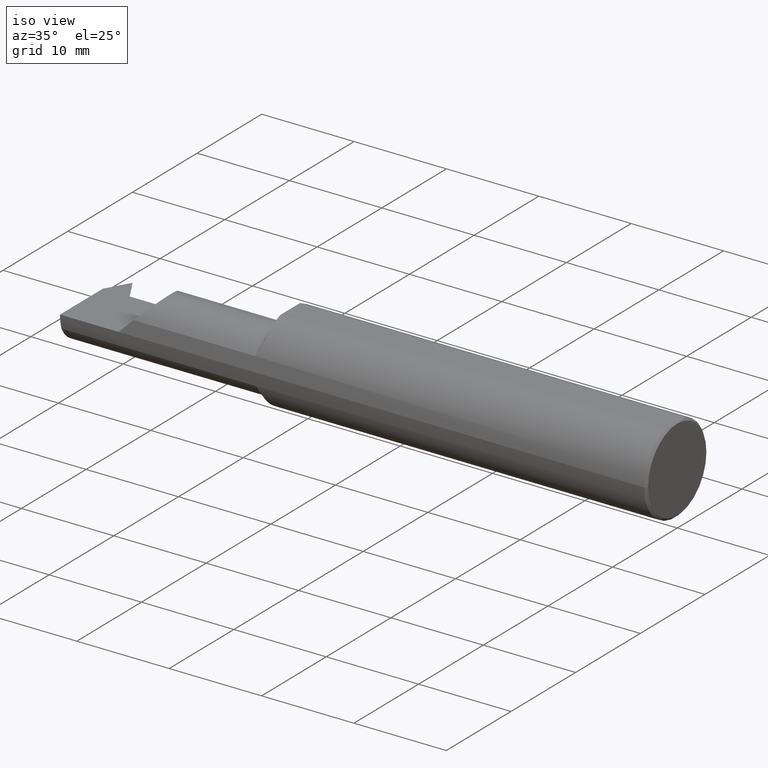
[diagram: clean part render]
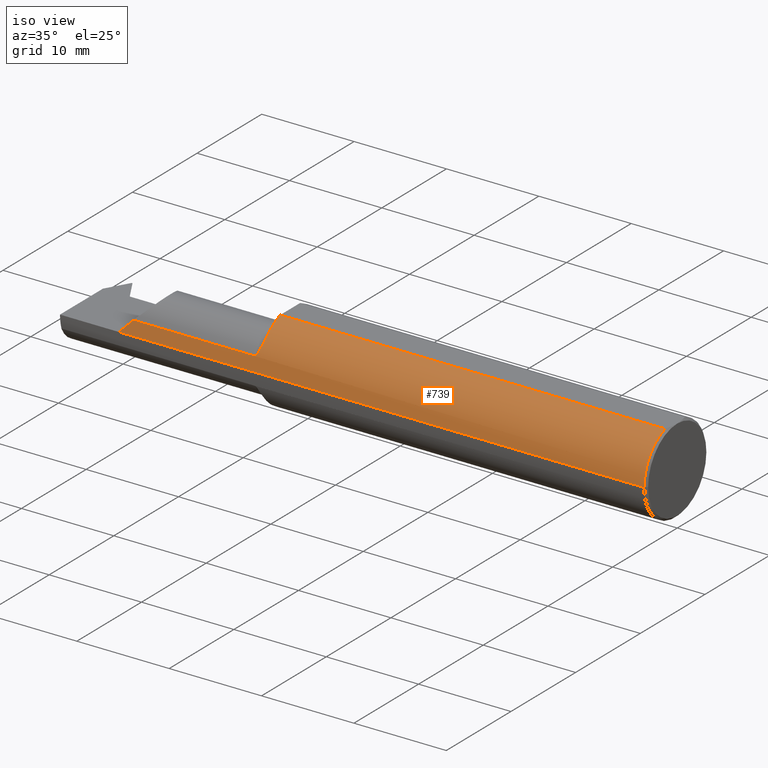
[diagram: same view with one face highlighted and labeled with its STEP entity id]
A machine part, iso view. The second image highlights one B-rep face of the part: STEP entity #739.
In plain terms, the highlighted cylindrical surface (partial cylindrical patch) has radius 4.7587 mm, axis along (1, 0, -0).
Its self-contained STEP definition (entity closure, byte-faithful):
#23 = DIRECTION ( 'NONE',  ( 1.000000000000000000, 1.224646799147352961E-16, -0.000000000000000000 ) ) ;
#28 = CARTESIAN_POINT ( 'NONE',  ( -2.250000000000000000, -0.1873499999999998222, 0.000000000000000000 ) ) ;
#33 = VECTOR ( 'NONE', #23, 39.37007874015748143 ) ;
#48 = AXIS2_PLACEMENT_3D ( 'NONE', #399, #533, #186 ) ;
#86 = VERTEX_POINT ( 'NONE', #248 ) ;
#89 = LINE ( 'NONE', #353, #33 ) ;
#115 = CIRCLE ( 'NONE', #169, 0.1873499999999999055 ) ;
#140 = CARTESIAN_POINT ( 'NONE',  ( -1.652207105173744139, -0.1438831799117014365, 0.1203810775392139126 ) ) ;
#156 = CARTESIAN_POINT ( 'NONE',  ( -1.673764212023046483, -0.1783697086546788269, 0.05730854678357311105 ) ) ;
#169 = AXIS2_PLACEMENT_3D ( 'NONE', #407, #477, #467 ) ;
#186 = DIRECTION ( 'NONE',  ( 0.000000000000000000, 1.000000000000000000, 0.000000000000000000 ) ) ;
#188 = CARTESIAN_POINT ( 'NONE',  ( -1.650000000000000133, -0.1160303770344974783, 0.1470951192431561860 ) ) ;
#200 = DIRECTION ( 'NONE',  ( -1.253099476677463101E-16, 1.000000000000000000, 0.000000000000000000 ) ) ;
#205 = CARTESIAN_POINT ( 'NONE',  ( -1.650000000000000133, -0.1160303770344974783, 0.1470951192431561860 ) ) ;
#219 = VERTEX_POINT ( 'NONE', #188 ) ;
#234 = ORIENTED_EDGE ( 'NONE', *, *, #452, .F. ) ;
#248 = CARTESIAN_POINT ( 'NONE',  ( -2.250000000000000000, -0.1873499999999998222, 0.000000000000000000 ) ) ;
#254 = ORIENTED_EDGE ( 'NONE', *, *, #867, .T. ) ;
#263 = CYLINDRICAL_SURFACE ( 'NONE', #48, 0.1873499999999999055 ) ;
#288 = ORIENTED_EDGE ( 'NONE', *, *, #845, .F. ) ;
#290 = VERTEX_POINT ( 'NONE', #422 ) ;
#308 = AXIS2_PLACEMENT_3D ( 'NONE', #461, #319, #200 ) ;
#318 = EDGE_CURVE ( 'NONE', #599, #424, #807, .T. ) ;
#319 = DIRECTION ( 'NONE',  ( -1.000000000000000000, -1.224646799147319927E-16, 0.000000000000000000 ) ) ;
#340 = DIRECTION ( 'NONE',  ( -1.000000000000000000, 9.108622265535208572E-17, -0.000000000000000000 ) ) ;
#349 = CARTESIAN_POINT ( 'NONE',  ( -1.650000000000000133, -0.06039039658753631717, 0.1773500000000000909 ) ) ;
#353 = CARTESIAN_POINT ( 'NONE',  ( -2.500000000000000000, -0.1873499999999998500, 2.294375778202565098E-17 ) ) ;
#360 = CARTESIAN_POINT ( 'NONE',  ( -1.664343418362526306, -0.1730952584121027704, 0.07182162584506067426 ) ) ;
#381 = CIRCLE ( 'NONE', #308, 0.1873499999999999055 ) ;
#399 = CARTESIAN_POINT ( 'NONE',  ( -2.500000000000000000, 6.123233995736767268E-17, 0.000000000000000000 ) ) ;
#406 = ORIENTED_EDGE ( 'NONE', *, *, #318, .T. ) ;
#407 = CARTESIAN_POINT ( 'NONE',  ( -1.650000000000000133, 1.653273178848926620E-16, 0.000000000000000000 ) ) ;
#422 = CARTESIAN_POINT ( 'NONE',  ( -0.009999999999999073866, -0.06039039658753610901, 0.1773500000000000909 ) ) ;
#423 = CARTESIAN_POINT ( 'NONE',  ( -2.211249739839921791, -0.1843323154515824902, 0.03875026016007789009 ) ) ;
#424 = VERTEX_POINT ( 'NONE', #559 ) ;
#435 = VERTEX_POINT ( 'NONE', #349 ) ;
#452 = EDGE_CURVE ( 'NONE', #86, #424, #487, .T. ) ;
#455 = ORIENTED_EDGE ( 'NONE', *, *, #519, .T. ) ;
#461 = CARTESIAN_POINT ( 'NONE',  ( -0.009999999999999073866, 3.661693929450587103E-16, 0.000000000000000000 ) ) ;
#467 = DIRECTION ( 'NONE',  ( 0.000000000000000000, -1.000000000000000000, -3.552713678800500929E-15 ) ) ;
#477 = DIRECTION ( 'NONE',  ( 1.000000000000000000, -9.108622265535208572E-17, 0.000000000000000000 ) ) ;
#483 = CARTESIAN_POINT ( 'NONE',  ( -1.649999999999978817, -0.1236042208122529046, 0.1411207813207419337 ) ) ;
#485 = EDGE_LOOP ( 'NONE', ( #234, #455, #696, #288, #774, #254, #406 ) ) ;
#487 =( BOUNDED_CURVE ( )  B_SPLINE_CURVE ( 3, ( #28, #492, #423, #688 ),
 .UNSPECIFIED., .F., .T. ) 
 B_SPLINE_CURVE_WITH_KNOTS ( ( 4, 4 ),
 ( 4.712388980384689674, 5.023262387692870590 ),
 .UNSPECIFIED. ) 
 CURVE ( )  GEOMETRIC_REPRESENTATION_ITEM ( )  RATIONAL_B_SPLINE_CURVE ( ( 1.000000000000000000, 0.9919626788073501178, 0.9919626788073501178, 1.000000000000000000 ) ) 
 REPRESENTATION_ITEM ( '' )  );
#492 = CARTESIAN_POINT ( 'NONE',  ( -2.230507368514858868, -0.1873499999999997390, 0.01949263148514096197 ) ) ;
#505 = CARTESIAN_POINT ( 'NONE',  ( -1.658844572613941803, -0.1652240583778480376, 0.08882027308812322219 ) ) ;
#518 = VERTEX_POINT ( 'NONE', #773 ) ;
#519 = EDGE_CURVE ( 'NONE', #86, #518, #89, .T. ) ;
#530 = CARTESIAN_POINT ( 'NONE',  ( -1.656810654710997310, -0.1605151270935934182, 0.09708342838367799155 ) ) ;
#533 = DIRECTION ( 'NONE',  ( 1.000000000000000000, 1.224646799147352961E-16, -0.000000000000000000 ) ) ;
#539 = VECTOR ( 'NONE', #674, 39.37007874015748143 ) ;
#544 = CARTESIAN_POINT ( 'NONE',  ( -2.500000000000000000, -0.06039039658753642126, 0.1773500000000000909 ) ) ;
#553 = CARTESIAN_POINT ( 'NONE',  ( -1.670882408083194548, -0.1776276410483738910, 0.05957475000073373522 ) ) ;
#559 = CARTESIAN_POINT ( 'NONE',  ( -2.192691453216396358, -0.1783697086546690291, 0.05730854678360299687 ) ) ;
#561 = CARTESIAN_POINT ( 'NONE',  ( -1.668195961774019409, -0.1762973784583061199, 0.06343092843766146016 ) ) ;
#573 = B_SPLINE_CURVE_WITH_KNOTS ( 'NONE', 3,
 ( #205, #483, #751, #140, #597, #530, #505, #775, #360, #691, #561, #822, #553, #757, #156, #683 ),
 .UNSPECIFIED., .F., .F.,
 ( 4, 2, 2, 2, 2, 2, 2, 4 ),
 ( 0.0004765446698261292650, 0.001211022660611348577, 0.001945500651396567726, 0.002679978642181785574, 0.003047217637574393522, 0.003230837135270698580, 0.003322646884118851326, 0.003414456632967004072 ),
 .UNSPECIFIED. ) ;
#582 = VECTOR ( 'NONE', #340, 39.37007874015748143 ) ;
#597 = CARTESIAN_POINT ( 'NONE',  ( -1.653482061302840700, -0.1498697720273031719, 0.1128244190106263700 ) ) ;
#599 = VERTEX_POINT ( 'NONE', #787 ) ;
#674 = DIRECTION ( 'NONE',  ( 1.000000000000000000, 1.224646799147352961E-16, -0.000000000000000000 ) ) ;
#683 = CARTESIAN_POINT ( 'NONE',  ( -1.675000000000000044, -0.1783697086546690291, 0.05730854678360375321 ) ) ;
#688 = CARTESIAN_POINT ( 'NONE',  ( -2.192691453216396358, -0.1783697086546690291, 0.05730854678360299687 ) ) ;
#691 = CARTESIAN_POINT ( 'NONE',  ( -1.667163479082055533, -0.1755340703777919231, 0.06552011612893750281 ) ) ;
#696 = ORIENTED_EDGE ( 'NONE', *, *, #744, .T. ) ;
#736 = CARTESIAN_POINT ( 'NONE',  ( -2.028037187078897574, -0.1783697086546688348, 0.05730854678360366994 ) ) ;
#739 = ADVANCED_FACE ( 'NONE', ( #810 ), #263, .T. ) ;
#744 = EDGE_CURVE ( 'NONE', #518, #290, #381, .T. ) ;
#751 = CARTESIAN_POINT ( 'NONE',  ( -1.650459820461650073, -0.1306920593655929441, 0.1345866223284677143 ) ) ;
#757 = CARTESIAN_POINT ( 'NONE',  ( -1.672655856876659630, -0.1781552959227968858, 0.05797775639605712988 ) ) ;
#773 = CARTESIAN_POINT ( 'NONE',  ( -0.009999999999999049580, -0.1873499999999995447, 2.294375778202565098E-17 ) ) ;
#774 = ORIENTED_EDGE ( 'NONE', *, *, #821, .T. ) ;
#775 = CARTESIAN_POINT ( 'NONE',  ( -1.662861924135735858, -0.1712588160411452620, 0.07610809679501853720 ) ) ;
#787 = CARTESIAN_POINT ( 'NONE',  ( -1.675000000000000044, -0.1783697086546690291, 0.05730854678360375321 ) ) ;
#807 = LINE ( 'NONE', #736, #582 ) ;
#810 = FACE_OUTER_BOUND ( 'NONE', #485, .T. ) ;
#817 = LINE ( 'NONE', #544, #539 ) ;
#821 = EDGE_CURVE ( 'NONE', #435, #219, #115, .T. ) ;
#822 = CARTESIAN_POINT ( 'NONE',  ( -1.670156893127618503, -0.1773094052629644590, 0.06051821018283387588 ) ) ;
#845 = EDGE_CURVE ( 'NONE', #435, #290, #817, .T. ) ;
#867 = EDGE_CURVE ( 'NONE', #219, #599, #573, .T. ) ;